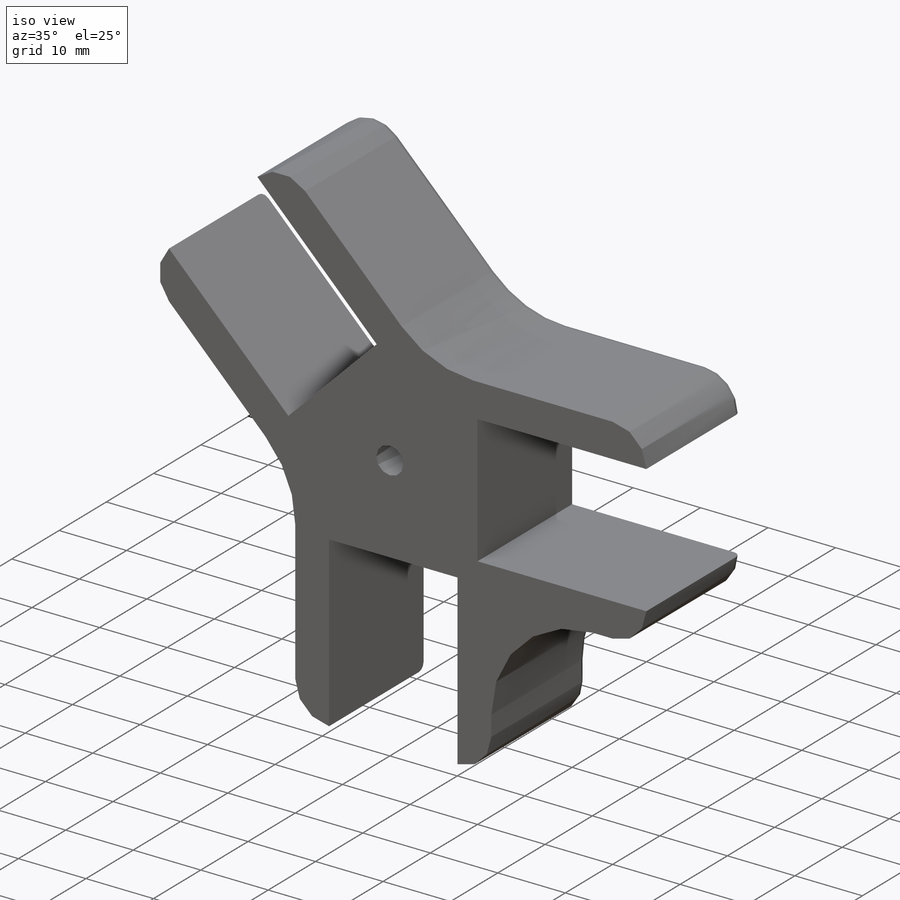
[diagram: iso view]
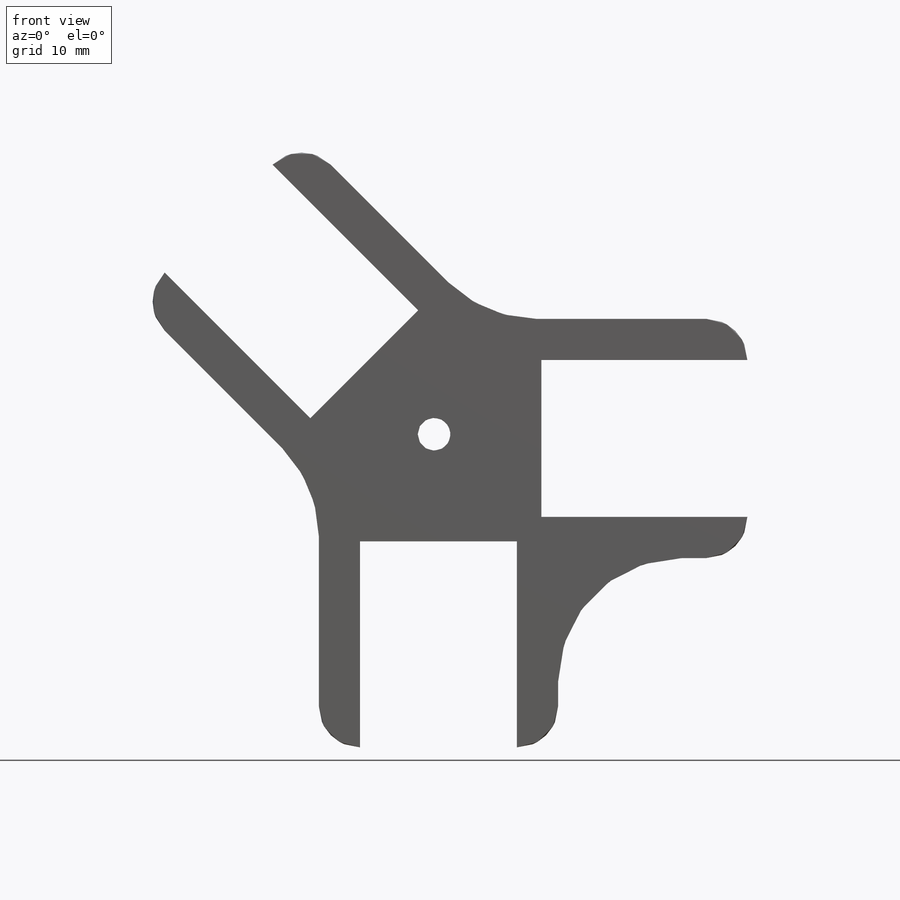
[diagram: front view]
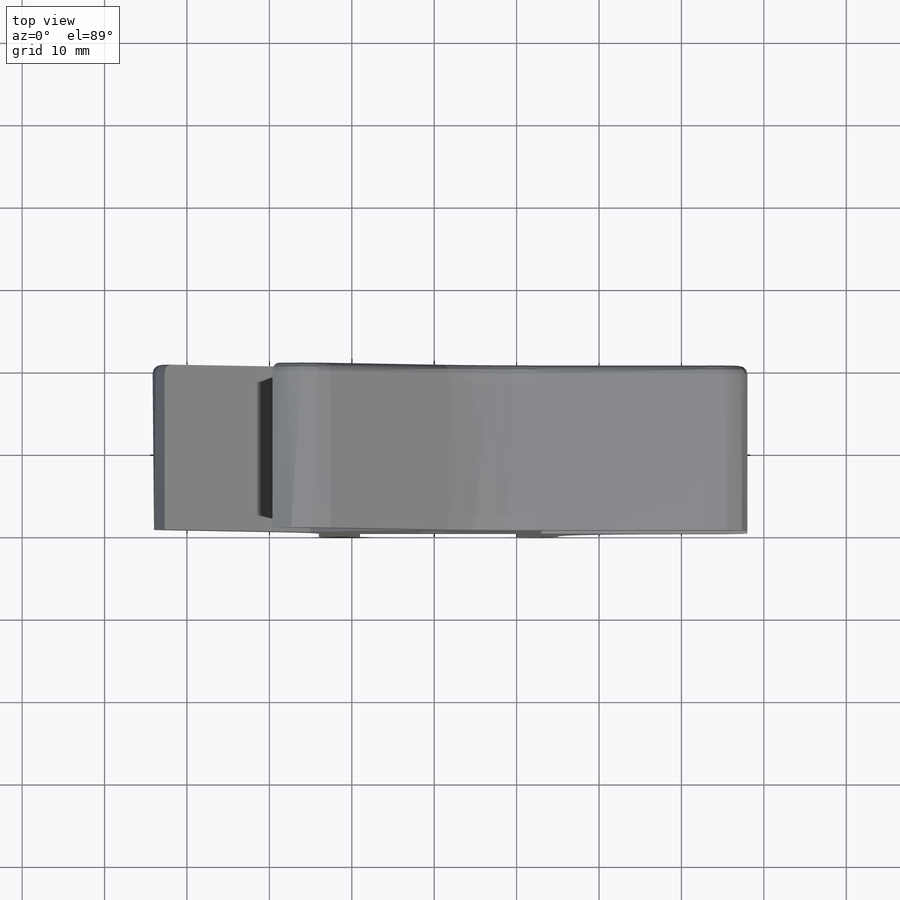
[diagram: top view]
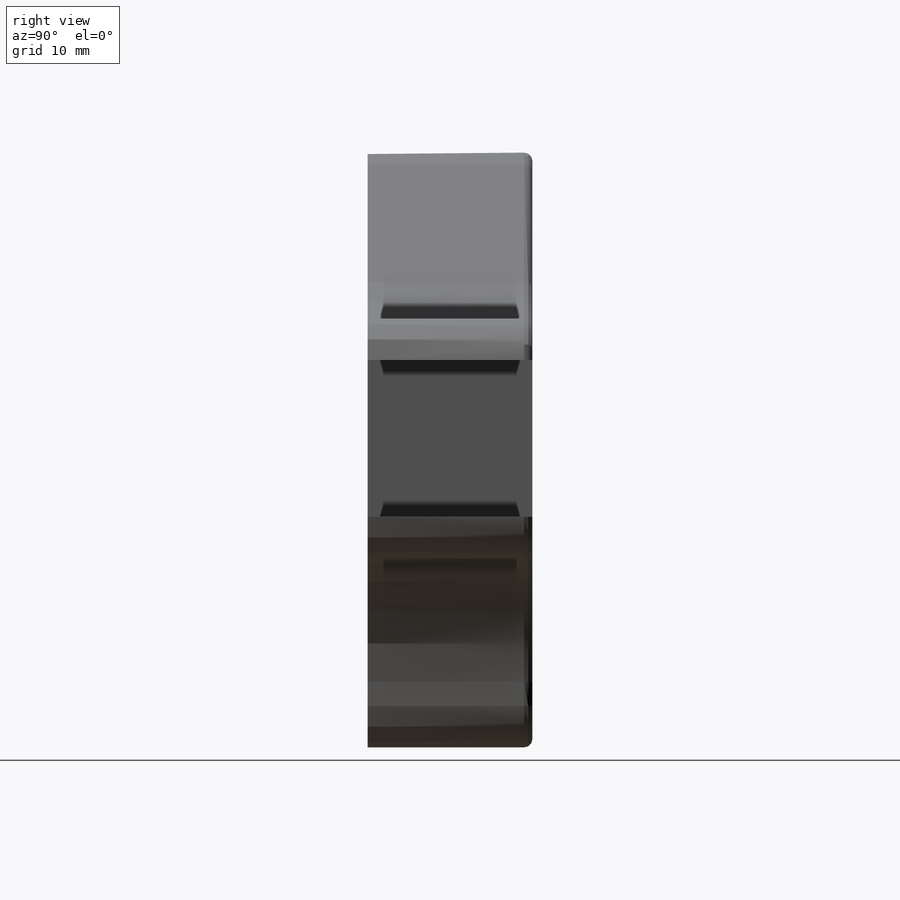
[diagram: right view]
SOLIDWORKS PART (.sldprt)
format: sldprt  version: not decoded by parser v0  size: 402,432 bytes
history: native  units: mm
features: plane x5, sketch x5, fillet x3, cut_extrude x2, material x1, extrude x1, cut_revolve x1 (+8 scaffold rows collapsed)
feature tree (26):
  scaffold x8  (default folders/planes/origin — collapsed)
  material  "Material <sin especificar>"
  plane  "Alzado"
  plane  "Planta"
  plane  "Vista lateral"
  sketch  "Croquis1"  dims[c1.D7=15.0mm c1.D12=10.0mm c2.D7=25.0mm c2.D21=15.0mm c2.D11=1.0mm c2.D12=15.0mm c2.D1=60.0mm c2.D2=60.0mm c2.D3=60.0mm c3.D3=90.0deg c3.D4=~20.413153mm c3.D5=60.0mm c4.D4=60.0mm c4.D5=~23.494658mm c5.D4=18.0mm c5.D5=18.5mm c5.D6=~24.262455mm c5.D7=60.0mm c6.D6=0.5mm c6.D7=60.0mm c6.D8=~22.814784mm c7.D7=0.5mm c7.D8=~24.663893mm c7.D9=79.0mm c8.D8=2.5mm c8.D9=79.0mm c8.D10=~27.082071mm c9.D9=5.0mm c9.D7=~0.143772mm c9.D8=5.0mm c9.D10=5.0mm c9.D11=5.0mm c9.D12=~6.687901mm c9.D13=25.0mm c9.D14=0.5mm c9.D15=0.5mm c9.D16=48.0mm c9.D17=45.5mm c10.D7=60.0mm c11.D7=120.0deg c11.D10=~80.267126mm c12.D10=150.0deg c13.D10=~69.51337mm c13.D7=60.0mm c14.D7=240.0deg c15.D7=~80.267126mm c16.D7=135.0deg c16.D10=~24.785262mm c16.D15=~92.427658mm c17.D10=~29.031523mm c17.D15=29.03mm c17.D17=60.0mm c17.D18=48.0mm c17.D19=5.0mm c17.D20=5.0mm c17.D4=9.25mm c17.D6=13.0mm c17.D8=9.0mm c17.D11=~19.031523mm c18.D15=25.0mm c18.D16=~19.031523mm]
  extrude  "Saliente-Extruir1"  Depth=20mm
  plane  "Plano1"
  sketch  "Croquis4"  dims[D1=5.0mm D2=5.0mm D3=5.0mm D4=5.0mm D5=5.0mm]
  cut_extrude  "Cortar-Extruir2"  Depth=15mm
  fillet  "Redondeo4"  Radius=5mm
  fillet  "Redondeo5"  Radius=1mm
  fillet  "Redondeo6"  Radius=1mm
  sketch  "Croquis5"  dims[D1=4.0mm]
  cut_extrude  "Cortar-Extruir3"  [1 undecoded]
  sketch  "Croquis6"  dims[D1=~4.690716mm]
  plane  "Plano2"
  sketch  "Croquis7"  dims[c1.D1=4.0mm c1.D2=~4.988611mm c2.D2=45.0deg c2.D3=2.0mm]
  cut_revolve  "Cortar-Revolución1"  Angle=360deg
decode coverage: 11 of 12 modeling features carry decoded parameters
note: ~ marks probable driven/reference dimensions
note: 1 parameter value undecoded
note: suppression state not decoded; provenance and decode notes live in map.json
